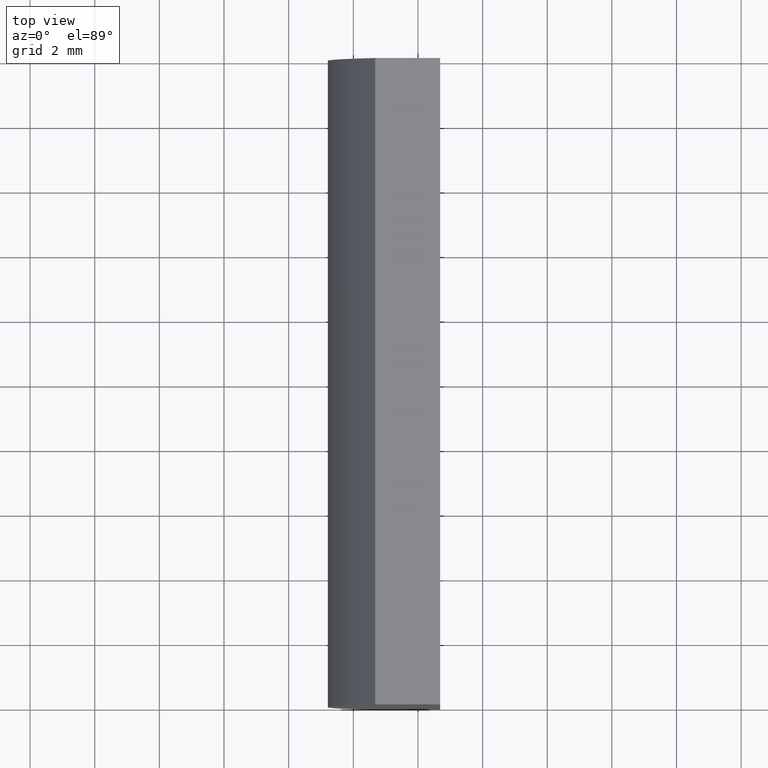
[diagram: clean part render]
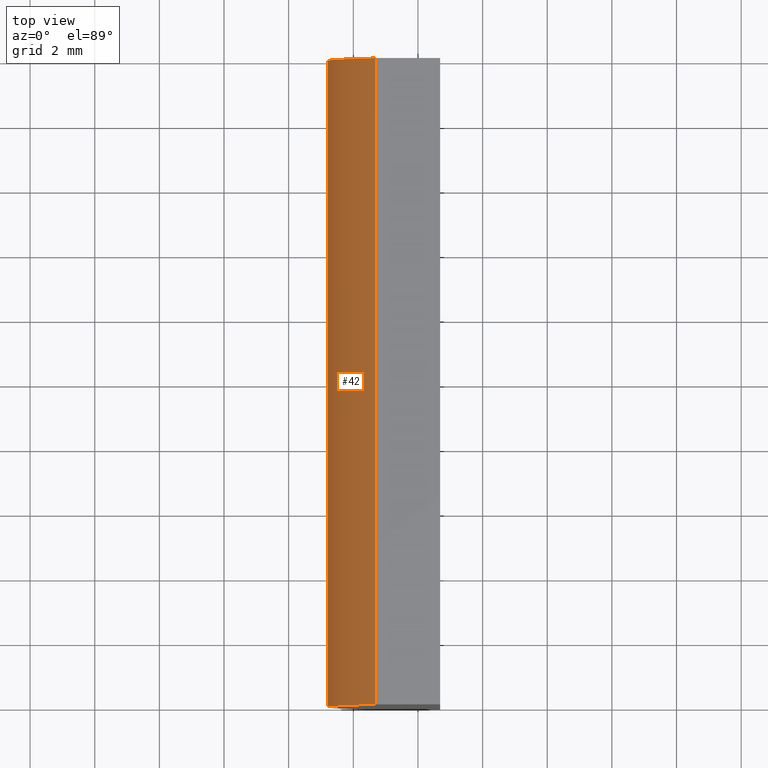
[diagram: same view with one face highlighted and labeled with its STEP entity id]
A machine part, top view. The second image highlights one B-rep face of the part: STEP entity #42.
In plain terms, the highlighted cylindrical surface (partial cylindrical patch) has radius 9.16 mm, axis along (-0, -1, -0).
Its self-contained STEP definition (entity closure, byte-faithful):
#3 = EDGE_CURVE ( 'NONE', #26, #65, #140, .T. ) ;
#12 = DIRECTION ( 'NONE',  ( -0.0000000000000000000, -1.000000000000000000, -0.0000000000000000000 ) ) ;
#14 = CARTESIAN_POINT ( 'NONE',  ( -3.319794036484067700, 20.00000000000000000, 5.000000000000000000 ) ) ;
#15 = EDGE_CURVE ( 'NONE', #167, #144, #63, .T. ) ;
#22 = AXIS2_PLACEMENT_3D ( 'NONE', #32, #148, #114 ) ;
#26 = VERTEX_POINT ( 'NONE', #153 ) ;
#28 = CYLINDRICAL_SURFACE ( 'NONE', #67, 9.160000000000001900 ) ;
#31 = CARTESIAN_POINT ( 'NONE',  ( -3.319794036484067700, 0.0000000000000000000, 5.000000000000000000 ) ) ;
#32 = CARTESIAN_POINT ( 'NONE',  ( 4.355204334851265500, 20.00000000000000000, 4.286263797015675000E-017 ) ) ;
#42 = ADVANCED_FACE ( 'NONE', ( #168 ), #28, .T. ) ;
#45 = CARTESIAN_POINT ( 'NONE',  ( 4.355204334851265500, 0.0000000000000000000, 4.286263797015675000E-017 ) ) ;
#46 = ORIENTED_EDGE ( 'NONE', *, *, #126, .T. ) ;
#53 = VECTOR ( 'NONE', #137, 1000.000000000000000 ) ;
#63 = LINE ( 'NONE', #123, #118 ) ;
#65 = VERTEX_POINT ( 'NONE', #164 ) ;
#67 = AXIS2_PLACEMENT_3D ( 'NONE', #81, #174, #173 ) ;
#76 = AXIS2_PLACEMENT_3D ( 'NONE', #45, #192, #160 ) ;
#80 = CIRCLE ( 'NONE', #76, 9.160000000000001900 ) ;
#81 = CARTESIAN_POINT ( 'NONE',  ( 4.355204334851265500, 20.00000000000000000, 4.286263797015675000E-017 ) ) ;
#84 = CARTESIAN_POINT ( 'NONE',  ( -3.319794036484067700, 20.00000000000000000, -5.000000000000000000 ) ) ;
#94 = EDGE_CURVE ( 'NONE', #26, #167, #141, .T. ) ;
#108 = ORIENTED_EDGE ( 'NONE', *, *, #15, .F. ) ;
#112 = ORIENTED_EDGE ( 'NONE', *, *, #94, .F. ) ;
#114 = DIRECTION ( 'NONE',  ( 0.0000000000000000000, 0.0000000000000000000, 1.000000000000000000 ) ) ;
#118 = VECTOR ( 'NONE', #12, 1000.000000000000000 ) ;
#123 = CARTESIAN_POINT ( 'NONE',  ( -3.319794036484067700, 20.00000000000000000, 5.000000000000000000 ) ) ;
#126 = EDGE_CURVE ( 'NONE', #65, #144, #80, .T. ) ;
#131 = ORIENTED_EDGE ( 'NONE', *, *, #3, .T. ) ;
#137 = DIRECTION ( 'NONE',  ( -0.0000000000000000000, -1.000000000000000000, -0.0000000000000000000 ) ) ;
#140 = LINE ( 'NONE', #84, #53 ) ;
#141 = CIRCLE ( 'NONE', #22, 9.160000000000001900 ) ;
#144 = VERTEX_POINT ( 'NONE', #31 ) ;
#148 = DIRECTION ( 'NONE',  ( 0.0000000000000000000, 1.000000000000000000, 0.0000000000000000000 ) ) ;
#150 = EDGE_LOOP ( 'NONE', ( #46, #108, #112, #131 ) ) ;
#153 = CARTESIAN_POINT ( 'NONE',  ( -3.319794036484067700, 20.00000000000000000, -5.000000000000000000 ) ) ;
#160 = DIRECTION ( 'NONE',  ( 0.0000000000000000000, 0.0000000000000000000, 1.000000000000000000 ) ) ;
#164 = CARTESIAN_POINT ( 'NONE',  ( -3.319794036484067700, 0.0000000000000000000, -5.000000000000000000 ) ) ;
#167 = VERTEX_POINT ( 'NONE', #14 ) ;
#168 = FACE_OUTER_BOUND ( 'NONE', #150, .T. ) ;
#173 = DIRECTION ( 'NONE',  ( 0.0000000000000000000, 0.0000000000000000000, -1.000000000000000000 ) ) ;
#174 = DIRECTION ( 'NONE',  ( -0.0000000000000000000, -1.000000000000000000, -0.0000000000000000000 ) ) ;
#192 = DIRECTION ( 'NONE',  ( 0.0000000000000000000, 1.000000000000000000, 0.0000000000000000000 ) ) ;